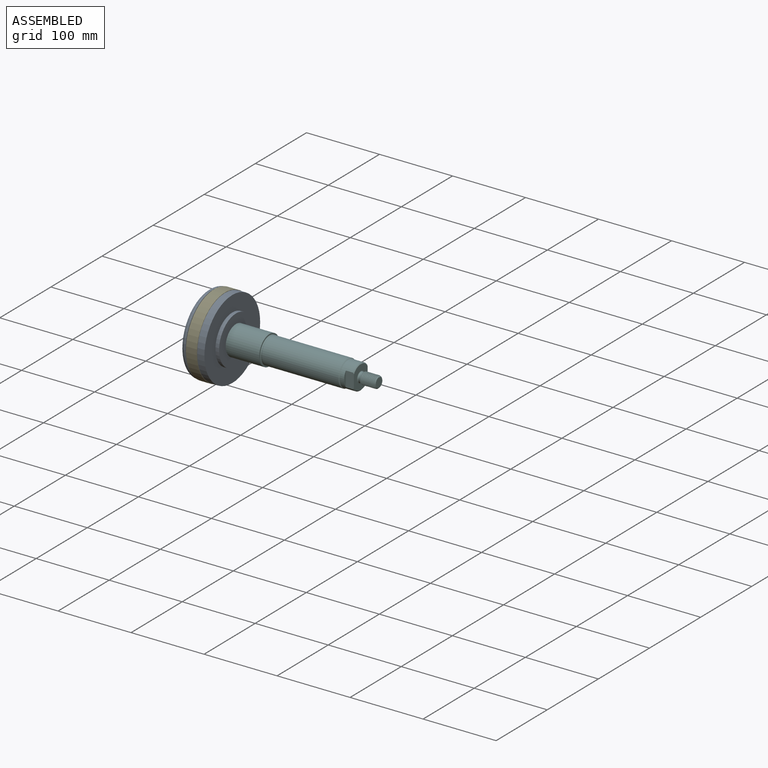
[diagram: assembled view]
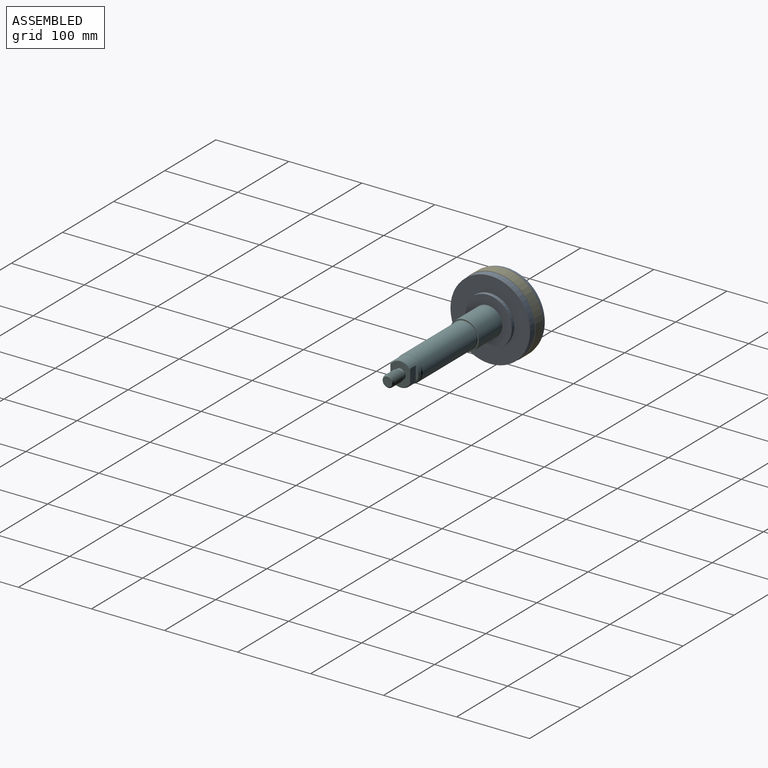
[diagram: assembled view, second angle]
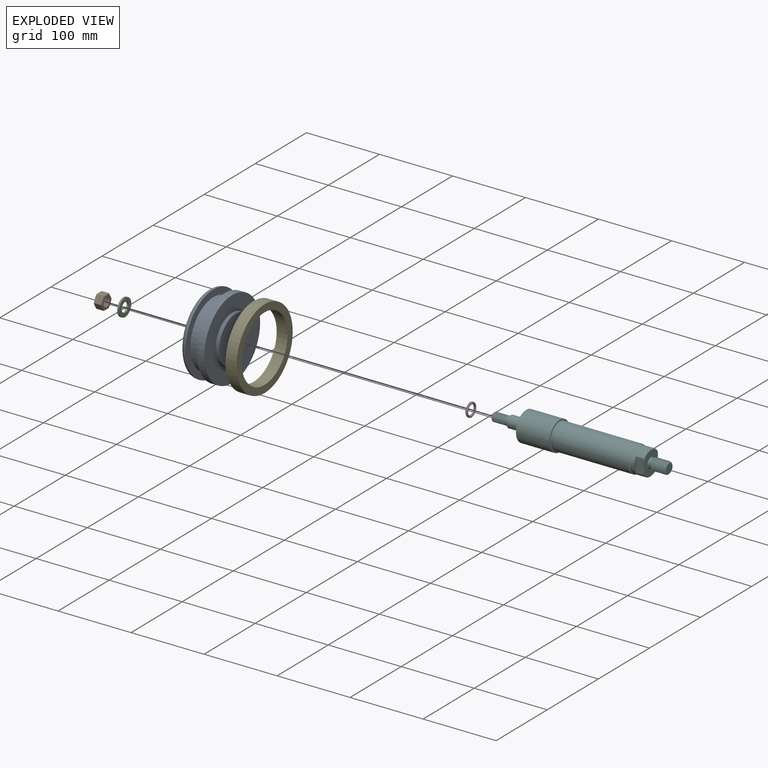
[diagram: exploded view]
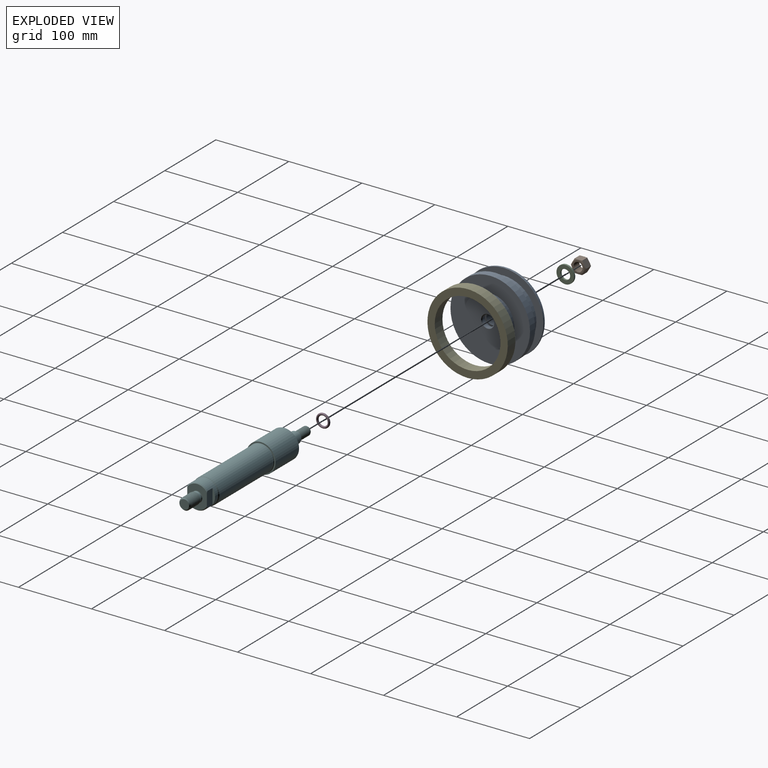
[diagram: exploded view, second angle]
ASSEMBLY  parts=6 mates=4
PART A: 19 faces, bbox 38x118x118 mm
  f0: plane 109x109mm, normal (1,0,0), area 5910.1mm2, adj f1,f15
  f1: cylinder r=33mm len=66mm, axis (1,0,0), area 1036.7mm2, adj f0,f2
  f2: plane 66x66mm, normal (1,0,0), area 3166.7mm2, adj f1,f17
  f3: cylinder r=8mm len=16mm, axis (1,0,0), area 201.1mm2, adj f4,f17
  f4: plane 20.65x20.65mm, normal (-1,0,0), area 133.8mm2, adj f3,f5
  f5: cylinder r=10.33mm len=20.65mm, axis (1,0,0), area 259.5mm2, adj f4,f6
  f6: plane 20.65x20.65mm, normal (1,0,0), area 133.8mm2, adj f5,f7
  f7: cylinder r=8mm len=16mm, axis (1,0,0), area 703.7mm2, adj f6,f8
  f8: plane 40x40mm, normal (-1,0,0), area 1055.6mm2, adj f7,f9
  f9: cylinder r=20mm len=40mm, axis (1,0,0), area 1759.3mm2, adj f8,f18
  f10: plane 97x97mm, normal (-1,0,0), area 6004.4mm2, adj f16,f18
  f11: cylinder r=54.5mm len=109mm, axis (1,0,0), area 342.4mm2, adj f12,f16
  f12: plane 109x109mm, normal (1,0,0), area 2969.6mm2, adj f11,f13
  f13: cylinder r=45mm len=90mm, axis (1,0,0), area 4523.9mm2, adj f12,f14
  f14: plane 109x109mm, normal (-1,0,0), area 2969.6mm2, adj f13,f15
  f15: cylinder r=54.5mm len=109mm, axis (1,0,0), area 3424.3mm2, adj f0,f14
  f16: torus R=48.5mm, axis (1,0,0), area 3098.2mm2, adj f10,f11
  f17: cone r=8mm half-angle=45deg, axis (1,0,0), area 75.5mm2, adj f2,f3
  f18: cone r=21mm half-angle=45deg, axis (-1,0,0), area 182.2mm2, adj f9,f10
PART B: 16 faces, bbox 20.9x12.4x20.9 mm
  f0: plane 16.71x16.71mm, normal (0,1,0), area 95.3mm2, adj f9,f10,f12,f13,f14,f15
  f1: plane 10.43x9mm, normal (-0.5,0,-0.87), area 105.7mm2, adj f2,f6,f8,f9
  f2: plane 10.43x9mm, normal (0.5,0,-0.87), area 105.7mm2, adj f1,f3,f8,f9
  f3: plane 10.43x10.39mm, normal (1,0,0), area 105.7mm2, adj f2,f4,f8,f9
  f4: plane 10.43x9mm, normal (0.5,0,0.87), area 105.7mm2, adj f3,f5,f8,f9
  f5: plane 10.43x9mm, normal (-0.5,0,0.87), area 105.7mm2, adj f4,f6,f8,f9
  f6: plane 10.43x10.39mm, normal (-1,0,0), area 105.7mm2, adj f1,f5,f8,f9
  f7: plane 16.71x16.71mm, normal (0,-1,0), area 95mm2, adj f8,f11,f12,f14,f15
  f8: cone r=8.3mm half-angle=75deg, axis (0,1,0), area 66.4mm2, adj f1,f2,f3,f4,f5,f6,f7
  f9: cone r=8.3mm half-angle=75deg, axis (0,-1,0), area 66.4mm2, adj f0,f1,f2,f3,f4,f5,f6
  f10: cone r=6.1mm half-angle=45deg, axis (0,1,0), area 13.3mm2, adj f0,f13,f14,f15
  f11: cone r=5.1mm half-angle=45deg, axis (0,-1,0), area 12.8mm2, adj f7,f14,f15
  f12: bspline ~15.16x13.13mm, area 131.3mm2, adj f0,f7,f14,f15
  f13: plane 0.42x0.34mm, normal (0.78,0,-0.62), area 0mm2, adj f0,f10,f15
  f14: bspline ~14.72x12.75mm, area 279.4mm2, adj f0,f7,f10,f11,f12,f15
  f15: bspline ~14.72x12.75mm, area 279mm2, adj f0,f7,f10,f11,f12,f13,f14
PART C: 4 faces, bbox 24x24x2.5 mm
  f0: plane 24x24mm, normal (0,0,1), area 309.3mm2, adj f1,f3
  f1: cylinder r=12mm len=24mm, axis (0,0,1), area 188.5mm2, adj f0,f2
  f2: plane 24x24mm, normal (0,0,-1), area 309.3mm2, adj f1,f3
  f3: cylinder r=6.75mm len=13.5mm, axis (0,0,1), area 106mm2, adj f0,f2
PART D: 1 faces, bbox 20.6x20.6x3 mm
  f0: torus R=8mm, axis (0,0,1), area 473.7mm2
PART E: 4 faces, bbox 110x15x110 mm
  f0: cylinder r=45mm len=90mm, axis (0,1,0), area 4241.2mm2, adj f2,f3
  f1: cylinder r=55mm len=110mm, axis (0,1,0), area 5183.6mm2, adj f2,f3
  f2: plane 110x110mm, normal (0,-1,0), area 3141.6mm2, adj f0,f1
  f3: plane 110x110mm, normal (0,1,0), area 3141.6mm2, adj f0,f1
PART F: 53 faces, bbox 242.5x40.1x40.1 mm
  f0: plane 32x27mm, normal (1,0,0), area 569.3mm2, adj f11,f46,f48,f50,f51
  f1: cone r=9.2mm half-angle=82deg, axis (-1,0,0), area 39.9mm2, adj f2,f35
  f2: plane 40x40mm, normal (-1,0,0), area 990.7mm2, adj f1,f3
  f3: cylinder r=20mm len=46mm, axis (-1,0,0), area 5780.5mm2, adj f2,f4
  f4: plane 40x40mm, normal (1,0,0), area 181.4mm2, adj f3,f5
  f5: torus R=18.5mm, axis (-1,0,0), area 142mm2, adj f4,f6
  f6: cylinder r=17.7mm len=35.4mm, axis (-1,0,0), area 52.8mm2, adj f5,f7
  f7: torus R=18.5mm, axis (-1,0,0), area 23.3mm2, adj f6,f8
  f8: cone r=18mm half-angle=15deg, axis (1,0,0), area 118.3mm2, adj f7,f9
  f9: cylinder r=18mm len=104.5mm, axis (-1,0,0), area 11818.7mm2, adj f8,f52
  f10: cylinder r=17mm len=34mm, axis (-1,0,0), area 1264.8mm2, adj f46,f47,f48,f49,f50,f51,f52
  f11: torus R=7.5mm, axis (-1,0,0), area 67.7mm2, adj f0,f12
  f12: cylinder r=6.5mm len=13mm, axis (-1,0,0), area 46.3mm2, adj f11,f13
  f13: torus R=7.5mm, axis (-1,0,0), area 21.5mm2, adj f12,f14
  f14: cone r=8mm half-angle=30deg, axis (1,0,0), area 65.9mm2, adj f13,f15,f38,f39,f40,f41
  f15: cylinder r=8mm len=18.5mm, axis (-1,0,0), area 114.6mm2, adj f14,f37,f39,f41
  f16: plane 13x13mm, normal (1,0,0), area 132.7mm2, adj f37
  f17: plane 10.08x10.03mm, normal (-1,0,0), area 78.2mm2, adj f36,f44
  f18: cylinder r=6mm len=12mm, axis (-1,0,0), area 6.2mm2, adj f19,f36,f43,f45
  f19: cylinder r=6mm len=12mm, axis (-1,0,0), area 8.3mm2, adj f18,f20,f43,f45
  f20: cylinder r=6mm len=12mm, axis (-1,0,0), area 8.3mm2, adj f19,f21,f43,f45
  f21: cylinder r=6mm len=12mm, axis (-1,0,0), area 8.3mm2, adj f20,f22,f43,f45
  f22: cylinder r=6mm len=12mm, axis (-1,0,0), area 8.3mm2, adj f21,f23,f43,f45
  f23: cylinder r=6mm len=12mm, axis (-1,0,0), area 8.3mm2, adj f22,f24,f43,f45
  f24: cylinder r=6mm len=12mm, axis (-1,0,0), area 8.3mm2, adj f23,f25,f43,f45
  f25: cylinder r=6mm len=12mm, axis (-1,0,0), area 8.3mm2, adj f24,f26,f43,f45
  f26: cylinder r=6mm len=12mm, axis (-1,0,0), area 8.3mm2, adj f25,f27,f43,f45
  f27: cylinder r=6mm len=12mm, axis (-1,0,0), area 8.3mm2, adj f26,f28,f43,f45
  f28: cylinder r=6mm len=12mm, axis (-1,0,0), area 147.6mm2, adj f27,f29,f42,f43,f45
  f29: plane 16x16mm, normal (-1,0,0), area 88mm2, adj f28,f30
  f30: cylinder r=8mm len=19mm, axis (-1,0,0), area 955mm2, adj f29,f31
  f31: cone r=8mm half-angle=15deg, axis (-1,0,0), area 34.5mm2, adj f30,f32
  f32: torus R=8.4mm, axis (-1,0,0), area 7.7mm2, adj f31,f33
  f33: cylinder r=7.8mm len=15.6mm, axis (-1,0,0), area 33.1mm2, adj f32,f34
  f34: torus R=8.4mm, axis (-1,0,0), area 47.5mm2, adj f33,f35
  f35: plane 16.98x16.98mm, normal (-1,0,0), area 4.7mm2, adj f1,f34
  f36: cone r=5mm half-angle=45deg, axis (1,0,0), area 21.8mm2, adj f17,f18,f43,f44,f45
  f37: cone r=8mm half-angle=45deg, axis (-1,0,0), area 54.3mm2, adj f15,f16,f39,f40,f41
  f38: plane 0.27x0.16mm, normal (0,0,1), area 0mm2, adj f14,f40
  f39: bspline ~23.62x18.48mm, area 488.4mm2, adj f14,f15,f37,f40
  f40: bspline ~22.84x15.98mm, area 282mm2, adj f14,f37,f38,f39,f41
  f41: bspline ~22.29x18.48mm, area 583mm2, adj f14,f15,f37,f40
  f42: plane 1.55x0.99mm, normal (0,0.43,0.9), area 1mm2, adj f28,f43,f44,f45
  f43: bspline ~19.8x13.86mm, area 396.5mm2, adj f18,f19,f20,f21,f22,f23,f24,f25
  f44: bspline ~19.97x11.66mm, area 179.4mm2, adj f17,f36,f42,f43,f45
  f45: bspline ~20.09x13.86mm, area 418.1mm2, adj f18,f19,f20,f21,f22,f23,f24,f25
  f46: plane 20.73x11.06mm, normal (0,1,0), area 225.6mm2, adj f0,f10,f47,f50,f51
  f47: plane 20.66x3.5mm, normal (1,0,0), area 49.3mm2, adj f10,f46
  f48: plane 20.73x11.06mm, normal (0,-1,0), area 225.6mm2, adj f0,f10,f49,f50,f51
  f49: plane 20.66x3.5mm, normal (1,0,0), area 49.3mm2, adj f10,f48
  f50: cone r=17mm half-angle=45deg, axis (-1,0,0), area 44.8mm2, adj f0,f10,f46,f48
  f51: cone r=17mm half-angle=45deg, axis (-1,0,0), area 44.8mm2, adj f0,f10,f46,f48
  f52: cone r=18mm half-angle=45deg, axis (-1,0,0), area 155.5mm2, adj f9,f10
PLACE A t=(-83.21,-0.69,-1.04)mm
PLACE B rot(axis=(-0.58,0.58,0.58),120deg) t=(-106.89,-0.75,-1.28)mm
PLACE C rot(axis=(-0.58,0.58,-0.58),120deg) t=(-101.49,-0.69,-1.04)mm
PLACE D rot(axis=(0,1,0),90deg) t=(-82.99,-0.69,-1.04)mm
PLACE E rot(axis=(0.58,0.58,-0.58),120deg) t=(-98.49,-0.69,-1.04)mm
PLACE F t=(0.01,-0.69,-1.04)mm fixed
MATE fastened D.f0 <-> A.f1  axis (1,0,0) through (-82.99,-0.69,-1.04)mm
MATE fastened E.f0 <-> A.f1  axis (1,0,0) through (-90.99,-0.69,-1.04)mm
MATE fastened B.f7 <-> C.f1  axis (1,0,0) through (-101.49,-0.69,-1.04)mm
MATE fastened A.f1 <-> F.f1  axis (1,0,0) through (-75.99,-0.69,-1.04)mm
